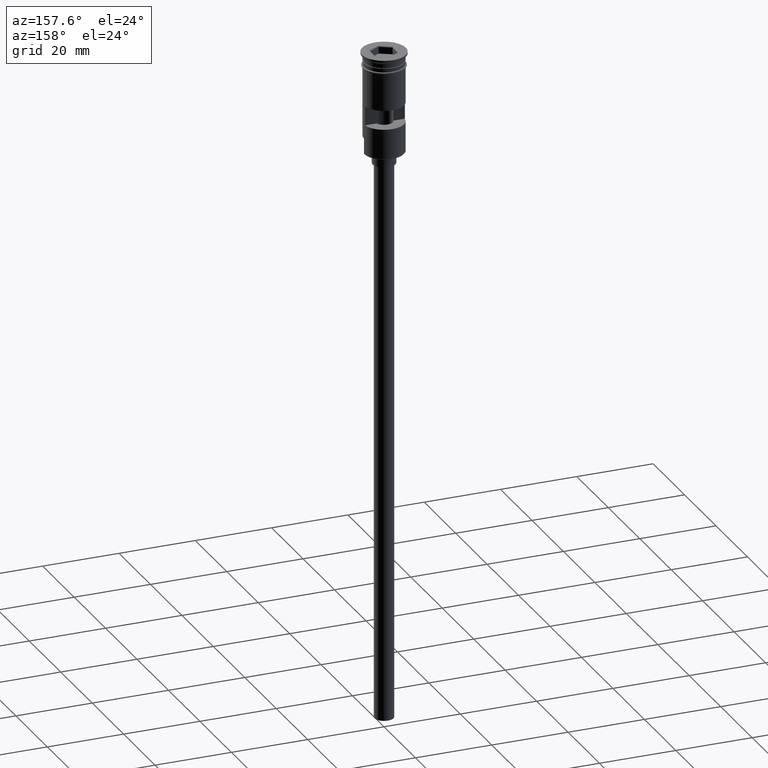
[diagram: clean part render]
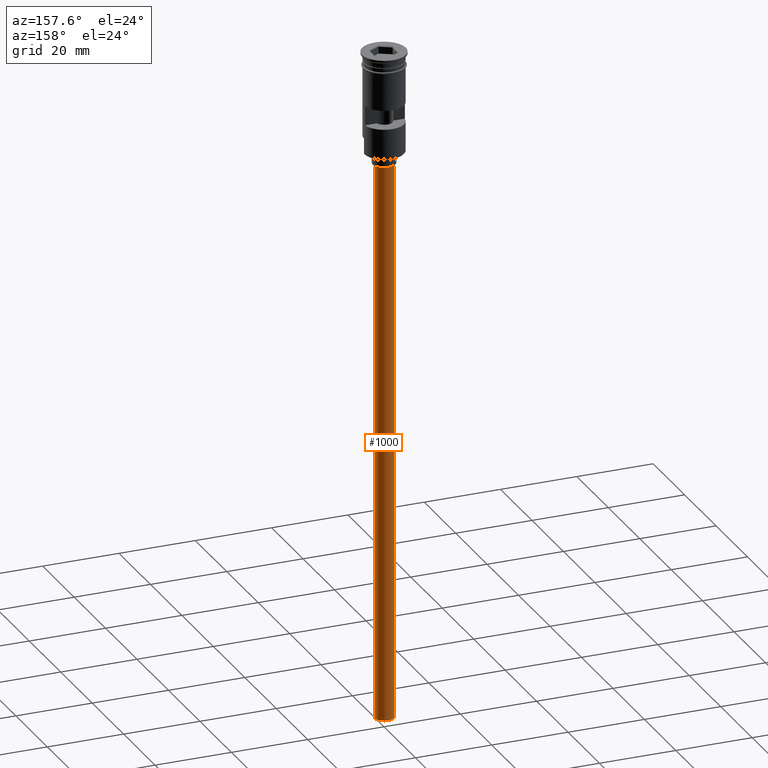
[diagram: same view with one face highlighted and labeled with its STEP entity id]
A machine part, auxiliary view. The second image highlights one B-rep face of the part: STEP entity #1000.
In plain terms, the highlighted cylindrical surface (edge-blend (fillet) strip) has radius 2.5 mm, axis along (-0, -0, 1).
Its self-contained STEP definition (entity closure, byte-faithful):
#76 = DIRECTION ( 'NONE',  ( 0.000000000000000000, 0.000000000000000000, -1.000000000000000000 ) ) ;
#79 = VERTEX_POINT ( 'NONE', #132 ) ;
#124 = CARTESIAN_POINT ( 'NONE',  ( -2.500000000000000000, 3.061616997868383141E-16, -176.5000000000000000 ) ) ;
#132 = CARTESIAN_POINT ( 'NONE',  ( 2.500000000000000000, 0.000000000000000000, -29.50000000000000000 ) ) ;
#196 = DIRECTION ( 'NONE',  ( -1.000000000000000000, 0.000000000000000000, 0.000000000000000000 ) ) ;
#201 = EDGE_CURVE ( 'NONE', #988, #1263, #1587, .T. ) ;
#241 = CARTESIAN_POINT ( 'NONE',  ( 0.000000000000000000, 0.000000000000000000, -176.5000000000000000 ) ) ;
#287 = CARTESIAN_POINT ( 'NONE',  ( 0.000000000000000000, 0.000000000000000000, -29.50000000000000000 ) ) ;
#348 = DIRECTION ( 'NONE',  ( 1.000000000000000000, 0.000000000000000000, 0.000000000000000000 ) ) ;
#415 = ORIENTED_EDGE ( 'NONE', *, *, #796, .F. ) ;
#451 = CARTESIAN_POINT ( 'NONE',  ( 2.500000000000000000, 0.000000000000000000, -176.5000000000000000 ) ) ;
#472 = CARTESIAN_POINT ( 'NONE',  ( -2.500000000000000000, 3.061616997868383141E-16, -176.5000000000000000 ) ) ;
#475 = FACE_OUTER_BOUND ( 'NONE', #913, .T. ) ;
#506 = CARTESIAN_POINT ( 'NONE',  ( -2.500000000000000000, 3.061616997868383141E-16, -29.50000000000000000 ) ) ;
#526 = DIRECTION ( 'NONE',  ( 0.000000000000000000, 0.000000000000000000, -1.000000000000000000 ) ) ;
#673 = AXIS2_PLACEMENT_3D ( 'NONE', #241, #1372, #348 ) ;
#702 = LINE ( 'NONE', #1079, #1281 ) ;
#708 = ORIENTED_EDGE ( 'NONE', *, *, #1445, .T. ) ;
#711 = EDGE_CURVE ( 'NONE', #1549, #79, #885, .T. ) ;
#743 = LINE ( 'NONE', #472, #810 ) ;
#796 = EDGE_CURVE ( 'NONE', #1263, #79, #702, .T. ) ;
#810 = VECTOR ( 'NONE', #989, 1000.000000000000000 ) ;
#885 = CIRCLE ( 'NONE', #912, 2.500000000000000000 ) ;
#912 = AXIS2_PLACEMENT_3D ( 'NONE', #287, #526, #1527 ) ;
#913 = EDGE_LOOP ( 'NONE', ( #1217, #708, #1244, #415 ) ) ;
#976 = CYLINDRICAL_SURFACE ( 'NONE', #673, 2.500000000000000000 ) ;
#988 = VERTEX_POINT ( 'NONE', #124 ) ;
#989 = DIRECTION ( 'NONE',  ( -0.000000000000000000, -0.000000000000000000, 1.000000000000000000 ) ) ;
#1000 = ADVANCED_FACE ( 'NONE', ( #475 ), #976, .T. ) ;
#1079 = CARTESIAN_POINT ( 'NONE',  ( 2.500000000000000000, 0.000000000000000000, -176.5000000000000000 ) ) ;
#1209 = DIRECTION ( 'NONE',  ( -0.000000000000000000, -0.000000000000000000, 1.000000000000000000 ) ) ;
#1217 = ORIENTED_EDGE ( 'NONE', *, *, #201, .F. ) ;
#1244 = ORIENTED_EDGE ( 'NONE', *, *, #711, .T. ) ;
#1263 = VERTEX_POINT ( 'NONE', #451 ) ;
#1281 = VECTOR ( 'NONE', #1209, 1000.000000000000000 ) ;
#1372 = DIRECTION ( 'NONE',  ( -0.000000000000000000, -0.000000000000000000, 1.000000000000000000 ) ) ;
#1411 = AXIS2_PLACEMENT_3D ( 'NONE', #1557, #76, #196 ) ;
#1445 = EDGE_CURVE ( 'NONE', #988, #1549, #743, .T. ) ;
#1527 = DIRECTION ( 'NONE',  ( -1.000000000000000000, 0.000000000000000000, 0.000000000000000000 ) ) ;
#1549 = VERTEX_POINT ( 'NONE', #506 ) ;
#1557 = CARTESIAN_POINT ( 'NONE',  ( 0.000000000000000000, 0.000000000000000000, -176.5000000000000000 ) ) ;
#1587 = CIRCLE ( 'NONE', #1411, 2.500000000000000000 ) ;